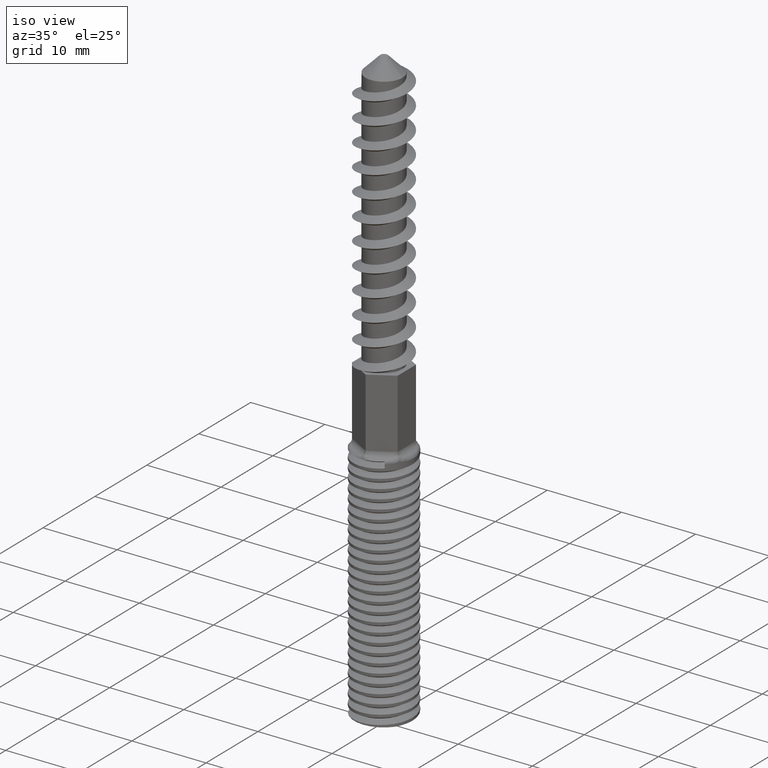
[diagram: clean part render]
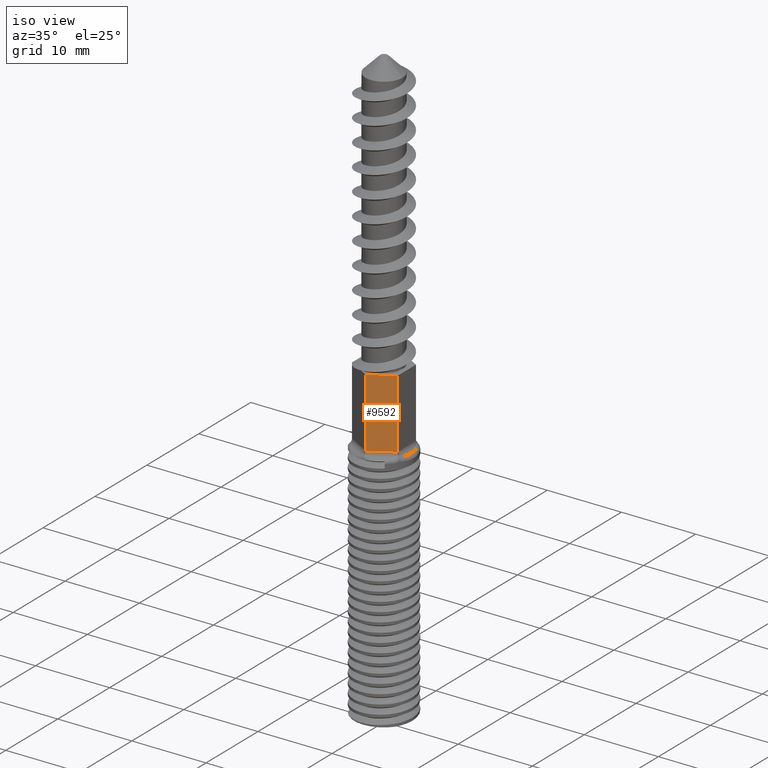
[diagram: same view with one face highlighted and labeled with its STEP entity id]
A machine part, iso view. The second image highlights one B-rep face of the part: STEP entity #9592.
In plain terms, the highlighted planar face has unit normal (-0.5, 0.866, 0).
Its self-contained STEP definition (entity closure, byte-faithful):
#57 = ORIENTED_EDGE ( 'NONE', *, *, #7368, .T. ) ;
#219 = VERTEX_POINT ( 'NONE', #949 ) ;
#231 = LINE ( 'NONE', #13750, #10916 ) ;
#627 = DIRECTION ( 'NONE',  ( -0.0000000000000000000, -0.0000000000000000000, 1.000000000000000000 ) ) ;
#751 = EDGE_CURVE ( 'NONE', #8841, #2062, #923, .T. ) ;
#923 = LINE ( 'NONE', #14773, #4718 ) ;
#949 = CARTESIAN_POINT ( 'NONE',  ( 3.074390183434737800, -1.775000000000036300, -46.79289321881345400 ) ) ;
#1235 = CARTESIAN_POINT ( 'NONE',  ( 1.024796727811458300, -2.958333333333416100, -46.79289321881345400 ) ) ;
#2062 = VERTEX_POINT ( 'NONE', #15318 ) ;
#2561 = ORIENTED_EDGE ( 'NONE', *, *, #9358, .F. ) ;
#2663 = CARTESIAN_POINT ( 'NONE',  ( 0.0000000000000000000, -3.550000000000001200, -46.79289321881345400 ) ) ;
#2709 = CARTESIAN_POINT ( 'NONE',  ( 3.074390183434737800, -1.775000000000036300, -37.50000000000000000 ) ) ;
#4121 = CARTESIAN_POINT ( 'NONE',  ( 2.049593455623288700, -2.366666666666616100, -46.79289321881345400 ) ) ;
#4322 = DIRECTION ( 'NONE',  ( -0.8660254037844415900, -0.4999999999999949500, 0.0000000000000000000 ) ) ;
#4718 = VECTOR ( 'NONE', #16144, 1000.000000000000100 ) ;
#5418 = AXIS2_PLACEMENT_3D ( 'NONE', #9676, #12588, #4322 ) ;
#5767 = ORIENTED_EDGE ( 'NONE', *, *, #751, .T. ) ;
#6120 = ORIENTED_EDGE ( 'NONE', *, *, #12023, .T. ) ;
#7037 = VECTOR ( 'NONE', #627, 1000.000000000000000 ) ;
#7368 = EDGE_CURVE ( 'NONE', #219, #8841, #231, .T. ) ;
#8841 = VERTEX_POINT ( 'NONE', #2709 ) ;
#9358 = EDGE_CURVE ( 'NONE', #17117, #2062, #14366, .T. ) ;
#9592 = ADVANCED_FACE ( 'NONE', ( #16744 ), #9797, .F. ) ;
#9676 = CARTESIAN_POINT ( 'NONE',  ( 3.074390183434737800, -1.775000000000036300, -47.50000000000000000 ) ) ;
#9797 = PLANE ( 'NONE',  #5418 ) ;
#9898 = EDGE_LOOP ( 'NONE', ( #2561, #6120, #57, #5767 ) ) ;
#10916 = VECTOR ( 'NONE', #15135, 1000.000000000000000 ) ;
#12023 = EDGE_CURVE ( 'NONE', #17117, #219, #13247, .T. ) ;
#12588 = DIRECTION ( 'NONE',  ( -0.4999999999999949500, 0.8660254037844415900, 0.0000000000000000000 ) ) ;
#13247 = B_SPLINE_CURVE_WITH_KNOTS ( 'NONE', 3,
 ( #2663, #1235, #4121, #13796 ),
 .UNSPECIFIED., .F., .F.,
 ( 4, 4 ),
 ( 0.0000000000000000000, 1.000000000000000000 ),
 .UNSPECIFIED. ) ;
#13291 = CARTESIAN_POINT ( 'NONE',  ( 0.0000000000000000000, -3.550000000000001200, -46.79289321881345400 ) ) ;
#13750 = CARTESIAN_POINT ( 'NONE',  ( 3.074390183434737800, -1.775000000000036300, -47.50000000000000000 ) ) ;
#13796 = CARTESIAN_POINT ( 'NONE',  ( 3.074390183434737800, -1.775000000000036300, -46.79289321881345400 ) ) ;
#14366 = LINE ( 'NONE', #17293, #7037 ) ;
#14773 = CARTESIAN_POINT ( 'NONE',  ( 3.074390183434737800, -1.775000000000036300, -37.50000000000000000 ) ) ;
#15135 = DIRECTION ( 'NONE',  ( -0.0000000000000000000, -0.0000000000000000000, 1.000000000000000000 ) ) ;
#15318 = CARTESIAN_POINT ( 'NONE',  ( 0.0000000000000000000, -3.550000000000001200, -37.50000000000000000 ) ) ;
#16144 = DIRECTION ( 'NONE',  ( -0.8660254037844415900, -0.4999999999999949500, 0.0000000000000000000 ) ) ;
#16744 = FACE_OUTER_BOUND ( 'NONE', #9898, .T. ) ;
#17117 = VERTEX_POINT ( 'NONE', #13291 ) ;
#17293 = CARTESIAN_POINT ( 'NONE',  ( 0.0000000000000000000, -3.550000000000001200, -47.50000000000000000 ) ) ;